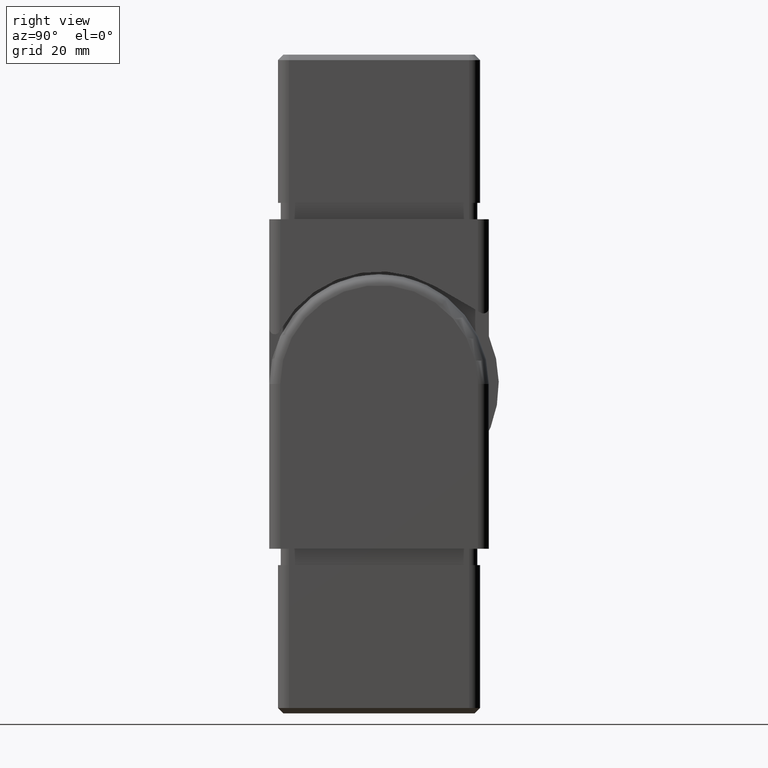
[diagram: clean part render]
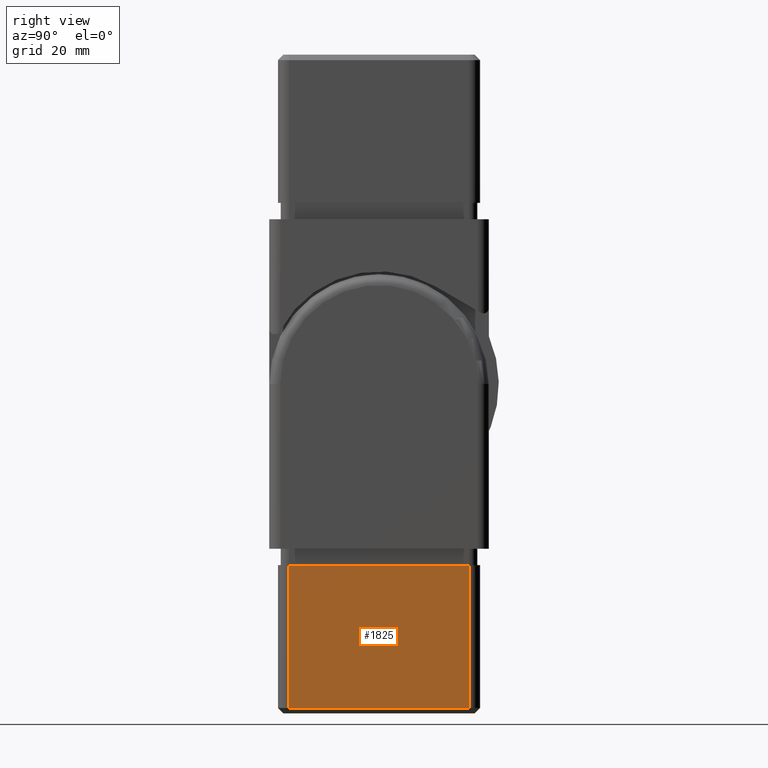
[diagram: same view with one face highlighted and labeled with its STEP entity id]
A machine part, right view. The second image highlights one B-rep face of the part: STEP entity #1825.
In plain terms, the highlighted planar face has unit normal (1, 0, 0).
Its self-contained STEP definition (entity closure, byte-faithful):
#968 = VERTEX_POINT ( 'NONE', #22301 ) ;
#1388 = EDGE_CURVE ( 'NONE', #13819, #16140, #16673, .T. ) ;
#1825 = ADVANCED_FACE ( 'NONE', ( #18827 ), #12471, .T. ) ;
#3080 = DIRECTION ( 'NONE',  ( 0.0000000000000000000, 5.551115123125772800E-017, -1.000000000000000000 ) ) ;
#3454 = EDGE_CURVE ( 'NONE', #968, #22829, #15031, .T. ) ;
#4155 = ORIENTED_EDGE ( 'NONE', *, *, #1388, .T. ) ;
#4515 = CARTESIAN_POINT ( 'NONE',  ( -18.39999999999999900, -16.40000000000004100, 3.000000000000016400 ) ) ;
#4531 = CARTESIAN_POINT ( 'NONE',  ( -18.40000000000000600, 1.387778780781445700E-014, 30.00000000000006000 ) ) ;
#4627 = CARTESIAN_POINT ( 'NONE',  ( -18.39999999999999900, -16.40000000000004100, 3.000000000000016400 ) ) ;
#6023 = CARTESIAN_POINT ( 'NONE',  ( -18.40000000000000600, -16.40000000000002700, 30.00000000000005300 ) ) ;
#6406 = VECTOR ( 'NONE', #3080, 1000.000000000000000 ) ;
#6466 = CARTESIAN_POINT ( 'NONE',  ( -18.40000000000000600, 16.40000000000003100, 30.00000000000003200 ) ) ;
#7283 = VECTOR ( 'NONE', #17325, 1000.000000000000000 ) ;
#7897 = ORIENTED_EDGE ( 'NONE', *, *, #3454, .F. ) ;
#8118 = EDGE_LOOP ( 'NONE', ( #22181, #7897, #19098, #4155 ) ) ;
#8262 = DIRECTION ( 'NONE',  ( 0.0000000000000000000, 1.000000000000000000, 5.551115123125772800E-017 ) ) ;
#10818 = CARTESIAN_POINT ( 'NONE',  ( -18.40000000000000600, 16.40000000000003800, 29.00000000000006000 ) ) ;
#11435 = VECTOR ( 'NONE', #12584, 1000.000000000000000 ) ;
#11766 = VECTOR ( 'NONE', #8262, 1000.000000000000000 ) ;
#12471 = PLANE ( 'NONE',  #17470 ) ;
#12584 = DIRECTION ( 'NONE',  ( 0.0000000000000000000, 5.551115123125772800E-017, -1.000000000000000000 ) ) ;
#13819 = VERTEX_POINT ( 'NONE', #10818 ) ;
#14512 = LINE ( 'NONE', #4627, #11766 ) ;
#15022 = CARTESIAN_POINT ( 'NONE',  ( -18.39999999999999900, 16.40000000000003400, 3.000000000000009800 ) ) ;
#15031 = LINE ( 'NONE', #6023, #6406 ) ;
#16140 = VERTEX_POINT ( 'NONE', #15022 ) ;
#16604 = DIRECTION ( 'NONE',  ( -1.000000000000000000, 0.0000000000000000000, 0.0000000000000000000 ) ) ;
#16673 = LINE ( 'NONE', #6466, #11435 ) ;
#16830 = EDGE_CURVE ( 'NONE', #968, #13819, #17780, .T. ) ;
#17325 = DIRECTION ( 'NONE',  ( 0.0000000000000000000, 1.000000000000000000, 5.551115123125772800E-017 ) ) ;
#17470 = AXIS2_PLACEMENT_3D ( 'NONE', #4531, #16604, #18359 ) ;
#17780 = LINE ( 'NONE', #25563, #7283 ) ;
#18359 = DIRECTION ( 'NONE',  ( 0.0000000000000000000, -5.551115123125772800E-017, 1.000000000000000000 ) ) ;
#18827 = FACE_OUTER_BOUND ( 'NONE', #8118, .T. ) ;
#19098 = ORIENTED_EDGE ( 'NONE', *, *, #16830, .T. ) ;
#19995 = EDGE_CURVE ( 'NONE', #22829, #16140, #14512, .T. ) ;
#22181 = ORIENTED_EDGE ( 'NONE', *, *, #19995, .F. ) ;
#22301 = CARTESIAN_POINT ( 'NONE',  ( -18.40000000000000600, -16.40000000000002300, 29.00000000000004600 ) ) ;
#22829 = VERTEX_POINT ( 'NONE', #4515 ) ;
#25563 = CARTESIAN_POINT ( 'NONE',  ( -18.40000000000000600, 0.0000000000000000000, 29.00000000000006000 ) ) ;